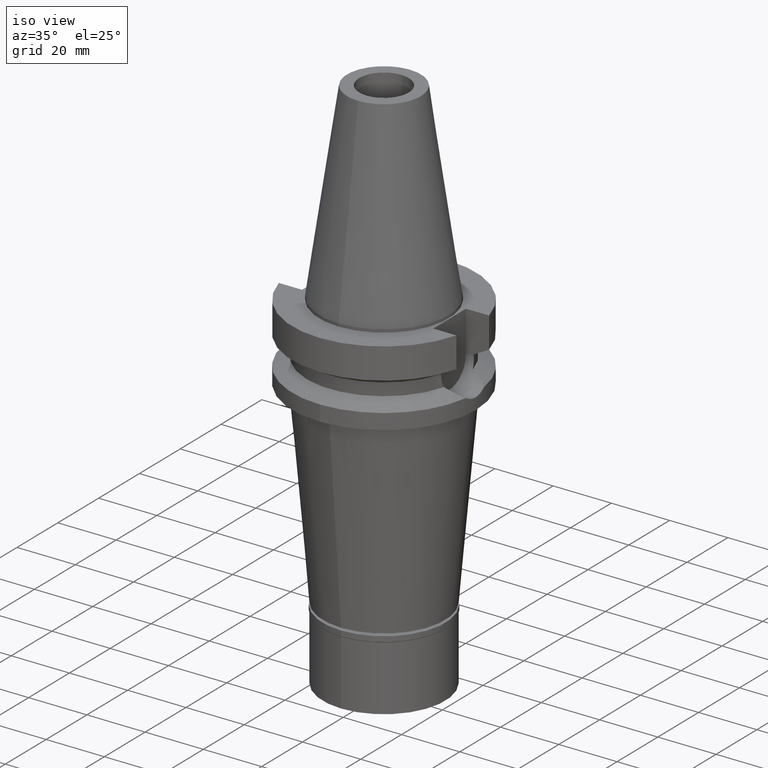
[diagram: clean part render]
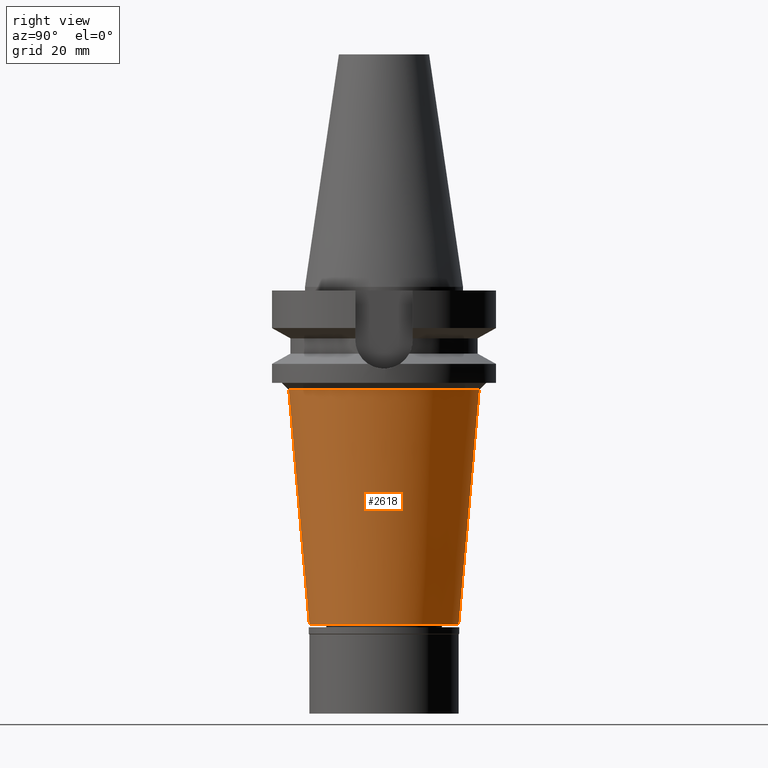
[diagram: tour spotlight — one face highlighted and labeled with its STEP entity id]
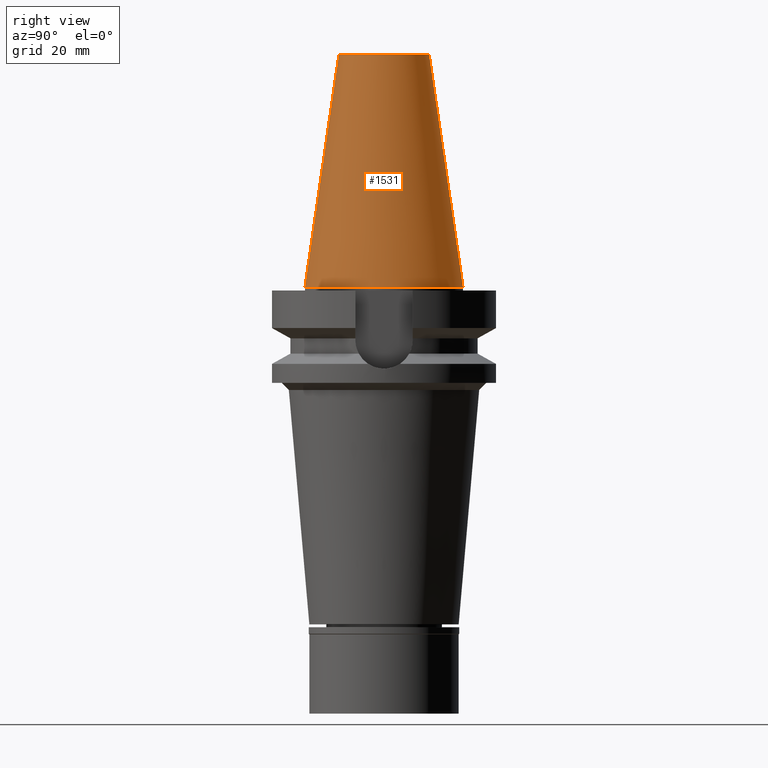
[diagram: tour spotlight — one face highlighted and labeled with its STEP entity id]
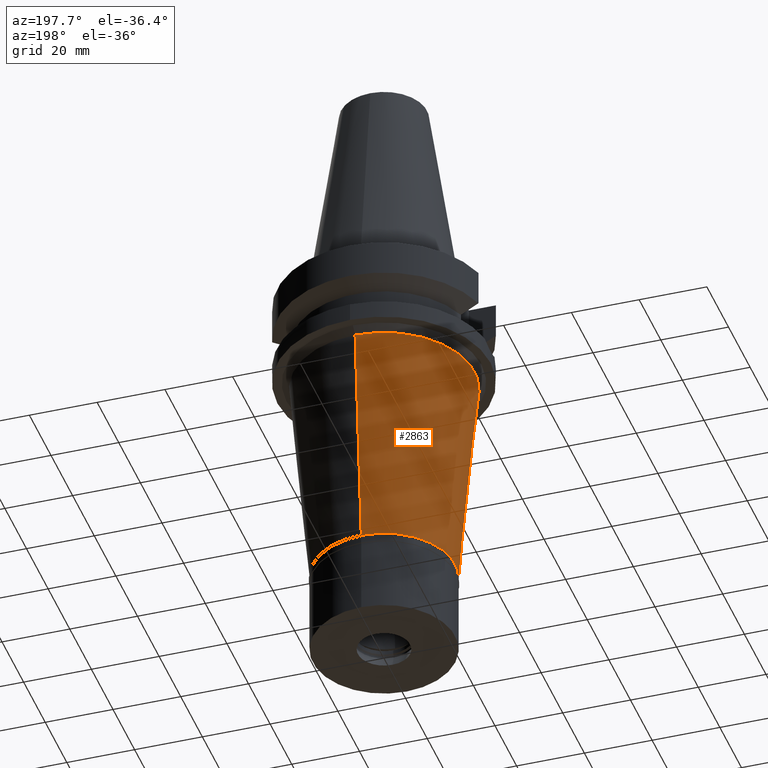
[diagram: tour spotlight — one face highlighted and labeled with its STEP entity id]
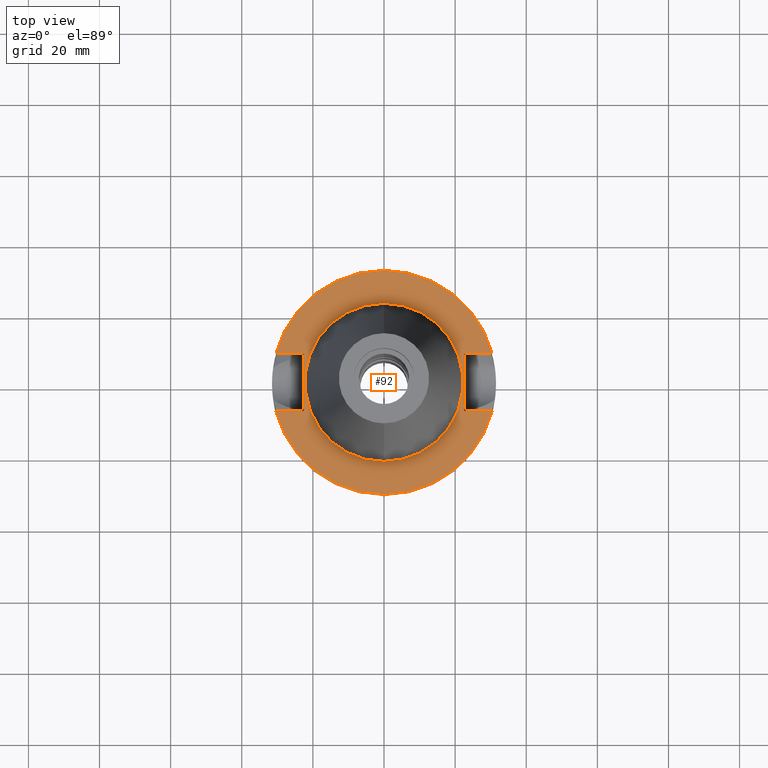
[diagram: tour spotlight — one face highlighted and labeled with its STEP entity id]
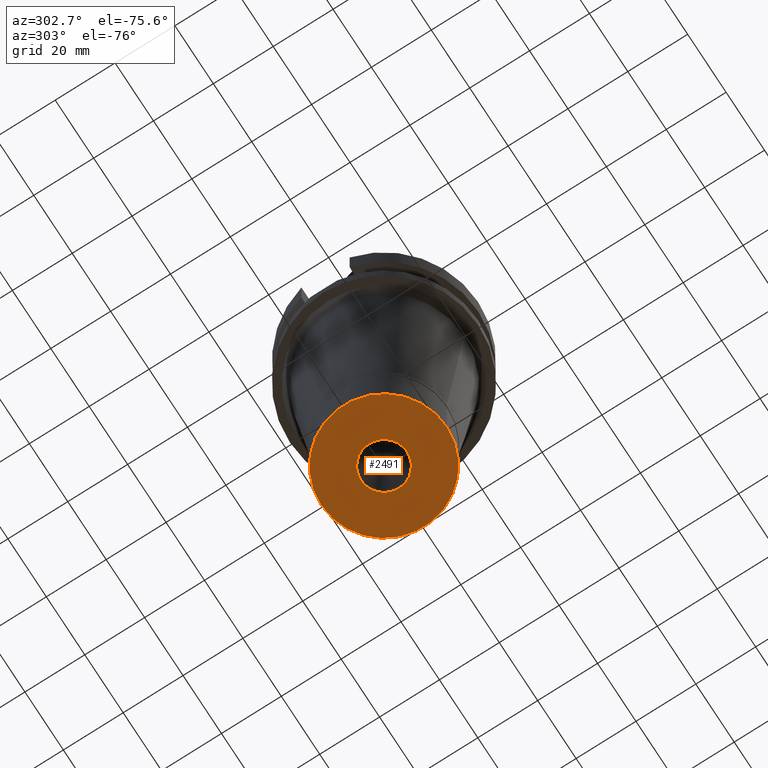
[diagram: tour spotlight — one face highlighted and labeled with its STEP entity id]
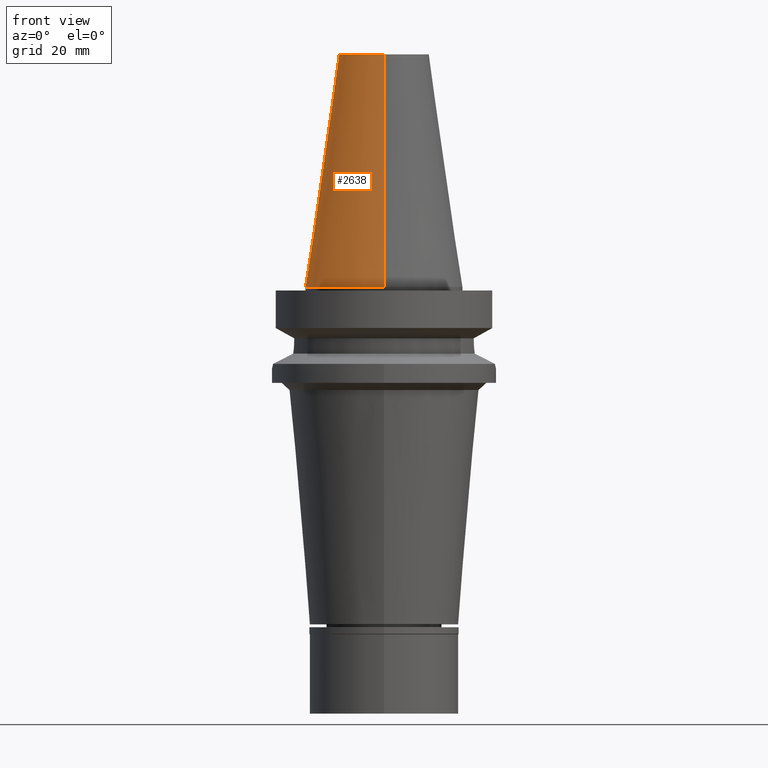
[diagram: tour spotlight — one face highlighted and labeled with its STEP entity id]
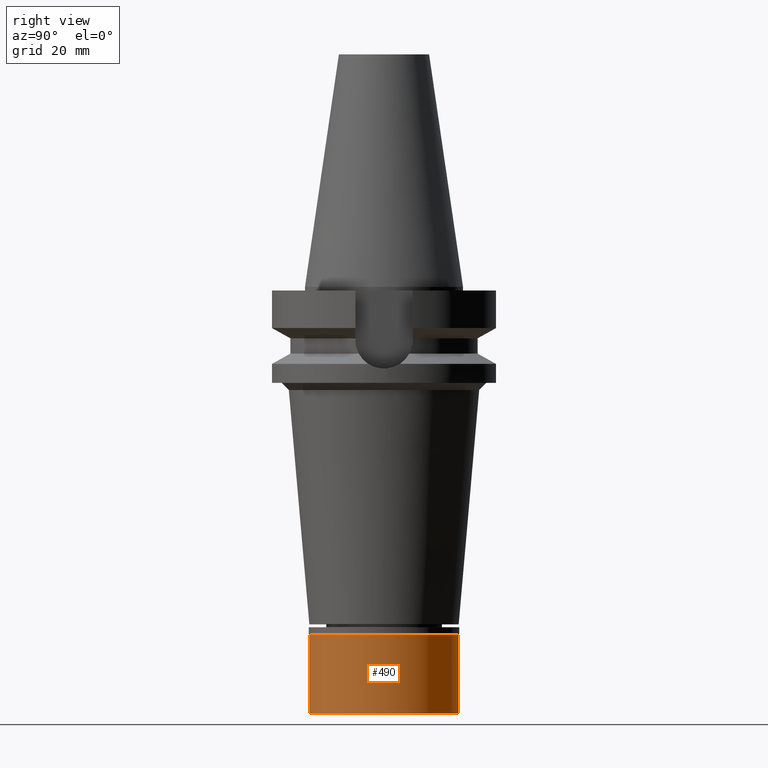
[diagram: tour spotlight — one face highlighted and labeled with its STEP entity id]
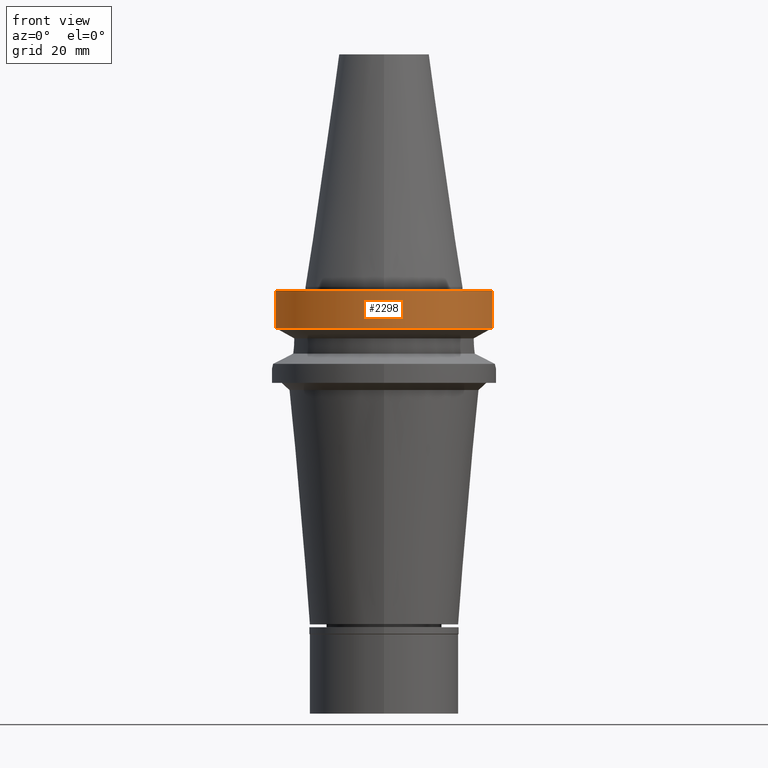
[diagram: tour spotlight — one face highlighted and labeled with its STEP entity id]
A machine part: a face-by-face anatomy tour. The part has 81 B-rep faces; the first image is the clean iso view, then the 8 largest visible faces are spotlighted one at a time (largest first), each with its STEP entity span.

Face 1 — right view, entity #2618. In plain terms, the highlighted conical surface has half-angle 5 deg.
Definition (entity closure, byte-faithful):
#28 = ORIENTED_EDGE ( 'NONE', *, *, #1691, .F. ) ;
#67 = CIRCLE ( 'NONE', #2099, 26.76550292636000350 ) ;
#131 = CARTESIAN_POINT ( 'NONE',  ( 0.0000000000000000000, -21.00000000000000000, -94.89999999999999147 ) ) ;
#168 = DIRECTION ( 'NONE',  ( 0.0000000000000000000, -1.000000000000000000, 0.0000000000000000000 ) ) ;
#322 = AXIS2_PLACEMENT_3D ( 'NONE', #2670, #936, #2180 ) ;
#342 = DIRECTION ( 'NONE',  ( 0.0000000000000000000, -1.000000000000000000, 0.0000000000000000000 ) ) ;
#345 = ORIENTED_EDGE ( 'NONE', *, *, #1412, .F. ) ;
#573 = VERTEX_POINT ( 'NONE', #1323 ) ;
#574 = DIRECTION ( 'NONE',  ( 0.0000000000000000000, -0.08715574274767391716, -0.9961946980917442129 ) ) ;
#620 = ORIENTED_EDGE ( 'NONE', *, *, #1939, .T. ) ;
#625 = VECTOR ( 'NONE', #1701, 1000.000000000000000 ) ;
#735 = FACE_OUTER_BOUND ( 'NONE', #2074, .T. ) ;
#936 = DIRECTION ( 'NONE',  ( 0.0000000000000000000, 0.0000000000000000000, 1.000000000000000000 ) ) ;
#1104 = CARTESIAN_POINT ( 'NONE',  ( 0.0000000000000000000, 0.0000000000000000000, -29.00000000000000000 ) ) ;
#1120 = DIRECTION ( 'NONE',  ( 0.0000000000000000000, 0.0000000000000000000, 1.000000000000000000 ) ) ;
#1323 = CARTESIAN_POINT ( 'NONE',  ( 0.0000000000000000000, 21.00000000000000000, -94.89999999999999147 ) ) ;
#1412 = EDGE_CURVE ( 'NONE', #2371, #1990, #67, .T. ) ;
#1480 = AXIS2_PLACEMENT_3D ( 'NONE', #1796, #2109, #342 ) ;
#1691 = EDGE_CURVE ( 'NONE', #1990, #573, #1789, .T. ) ;
#1701 = DIRECTION ( 'NONE',  ( 0.0000000000000000000, 0.08715574274767391716, -0.9961946980917442129 ) ) ;
#1789 = LINE ( 'NONE', #2236, #2761 ) ;
#1796 = CARTESIAN_POINT ( 'NONE',  ( 0.0000000000000000000, 0.0000000000000000000, -94.89999999999999147 ) ) ;
#1861 = LINE ( 'NONE', #2843, #625 ) ;
#1939 = EDGE_CURVE ( 'NONE', #2371, #2307, #1861, .T. ) ;
#1990 = VERTEX_POINT ( 'NONE', #2162 ) ;
#2074 = EDGE_LOOP ( 'NONE', ( #345, #620, #3022, #28 ) ) ;
#2099 = AXIS2_PLACEMENT_3D ( 'NONE', #1104, #1120, #168 ) ;
#2109 = DIRECTION ( 'NONE',  ( 0.0000000000000000000, 0.0000000000000000000, 1.000000000000000000 ) ) ;
#2162 = CARTESIAN_POINT ( 'NONE',  ( 0.0000000000000000000, 26.76550292636000350, -29.00000000000000000 ) ) ;
#2180 = DIRECTION ( 'NONE',  ( 0.0000000000000000000, 1.000000000000000000, 0.0000000000000000000 ) ) ;
#2236 = CARTESIAN_POINT ( 'NONE',  ( 0.0000000000000000000, 26.76550292636000350, -29.00000000000000000 ) ) ;
#2307 = VERTEX_POINT ( 'NONE', #131 ) ;
#2371 = VERTEX_POINT ( 'NONE', #2564 ) ;
#2564 = CARTESIAN_POINT ( 'NONE',  ( 0.0000000000000000000, -26.76550292636000350, -29.00000000000000000 ) ) ;
#2618 = ADVANCED_FACE ( 'NONE', ( #735 ), #2911, .T. ) ;
#2670 = CARTESIAN_POINT ( 'NONE',  ( 0.0000000000000000000, 0.0000000000000000000, -61.94999999999999574 ) ) ;
#2761 = VECTOR ( 'NONE', #574, 1000.000000000000000 ) ;
#2843 = CARTESIAN_POINT ( 'NONE',  ( 0.0000000000000000000, -26.76550292636000350, -29.00000000000000000 ) ) ;
#2864 = CIRCLE ( 'NONE', #1480, 21.00000000000000000 ) ;
#2911 = CONICAL_SURFACE ( 'NONE', #322, 23.88275146317999997, 0.08726646259969973729 ) ;
#2913 = EDGE_CURVE ( 'NONE', #2307, #573, #2864, .T. ) ;
#3022 = ORIENTED_EDGE ( 'NONE', *, *, #2913, .T. ) ;

Face 2 — right view, entity #1531. In plain terms, the highlighted conical surface has half-angle 8.297 deg.
Definition (entity closure, byte-faithful):
#13 = EDGE_CURVE ( 'NONE', #2729, #2825, #1646, .T. ) ;
#37 = DIRECTION ( 'NONE',  ( 0.0000000000000000000, 0.0000000000000000000, -1.000000000000000000 ) ) ;
#151 = CARTESIAN_POINT ( 'NONE',  ( 0.0000000000000000000, 1.625106302469000024E-14, 32.70000000000000284 ) ) ;
#175 = AXIS2_PLACEMENT_3D ( 'NONE', #151, #186, #2093 ) ;
#186 = DIRECTION ( 'NONE',  ( 0.0000000000000000000, 0.0000000000000000000, -1.000000000000000000 ) ) ;
#264 = CARTESIAN_POINT ( 'NONE',  ( 0.0000000000000000000, -12.68766899429999917, 65.40000000000000568 ) ) ;
#305 = CARTESIAN_POINT ( 'NONE',  ( 0.0000000000000000000, 1.625106302469000024E-14, 65.40000000000000568 ) ) ;
#380 = VECTOR ( 'NONE', #508, 1000.000000000000114 ) ;
#474 = DIRECTION ( 'NONE',  ( 0.0000000000000000000, 0.1443043893539925626, -0.9895333461855498891 ) ) ;
#476 = VECTOR ( 'NONE', #474, 1000.000000000000114 ) ;
#508 = DIRECTION ( 'NONE',  ( 0.0000000000000000000, -0.1443043893539925626, -0.9895333461855498891 ) ) ;
#511 = CARTESIAN_POINT ( 'NONE',  ( 0.0000000000000000000, 1.625106302469000024E-14, 2.842170943039999687E-14 ) ) ;
#529 = CONICAL_SURFACE ( 'NONE', #175, 17.45633449714999941, 0.1448099680379422438 ) ;
#593 = ORIENTED_EDGE ( 'NONE', *, *, #13, .F. ) ;
#654 = EDGE_CURVE ( 'NONE', #2033, #1111, #2455, .T. ) ;
#718 = CARTESIAN_POINT ( 'NONE',  ( 0.0000000000000000000, 12.68766899429999917, 65.40000000000000568 ) ) ;
#953 = ORIENTED_EDGE ( 'NONE', *, *, #2726, .T. ) ;
#977 = LINE ( 'NONE', #718, #476 ) ;
#1028 = EDGE_CURVE ( 'NONE', #2033, #2729, #977, .T. ) ;
#1042 = LINE ( 'NONE', #264, #380 ) ;
#1111 = VERTEX_POINT ( 'NONE', #2973 ) ;
#1240 = CARTESIAN_POINT ( 'NONE',  ( 0.0000000000000000000, 22.22500000000000142, 6.394884621841000123E-14 ) ) ;
#1302 = DIRECTION ( 'NONE',  ( 0.0000000000000000000, 1.000000000000000000, 0.0000000000000000000 ) ) ;
#1531 = ADVANCED_FACE ( 'NONE', ( #2604 ), #529, .T. ) ;
#1646 = CIRCLE ( 'NONE', #1958, 22.22500000000000142 ) ;
#1958 = AXIS2_PLACEMENT_3D ( 'NONE', #511, #37, #1974 ) ;
#1974 = DIRECTION ( 'NONE',  ( 0.0000000000000000000, 1.000000000000000000, 0.0000000000000000000 ) ) ;
#1988 = CARTESIAN_POINT ( 'NONE',  ( 0.0000000000000000000, -22.22500000000000142, 6.394884621841000123E-14 ) ) ;
#2033 = VERTEX_POINT ( 'NONE', #2643 ) ;
#2093 = DIRECTION ( 'NONE',  ( 0.0000000000000000000, -1.000000000000000000, 0.0000000000000000000 ) ) ;
#2153 = EDGE_LOOP ( 'NONE', ( #2172, #953, #593, #2424 ) ) ;
#2172 = ORIENTED_EDGE ( 'NONE', *, *, #654, .T. ) ;
#2424 = ORIENTED_EDGE ( 'NONE', *, *, #1028, .F. ) ;
#2455 = CIRCLE ( 'NONE', #2755, 12.68766899429999917 ) ;
#2604 = FACE_OUTER_BOUND ( 'NONE', #2153, .T. ) ;
#2643 = CARTESIAN_POINT ( 'NONE',  ( 0.0000000000000000000, 12.68766899429999917, 65.40000000000000568 ) ) ;
#2726 = EDGE_CURVE ( 'NONE', #1111, #2825, #1042, .T. ) ;
#2729 = VERTEX_POINT ( 'NONE', #1240 ) ;
#2755 = AXIS2_PLACEMENT_3D ( 'NONE', #305, #2977, #1302 ) ;
#2825 = VERTEX_POINT ( 'NONE', #1988 ) ;
#2973 = CARTESIAN_POINT ( 'NONE',  ( 0.0000000000000000000, -12.68766899429999917, 65.40000000000000568 ) ) ;
#2977 = DIRECTION ( 'NONE',  ( 0.0000000000000000000, 0.0000000000000000000, -1.000000000000000000 ) ) ;

Face 3 — auxiliary view, entity #2863. In plain terms, the highlighted conical surface has half-angle 5 deg.
Definition (entity closure, byte-faithful):
#131 = CARTESIAN_POINT ( 'NONE',  ( 0.0000000000000000000, -21.00000000000000000, -94.89999999999999147 ) ) ;
#184 = DIRECTION ( 'NONE',  ( 0.0000000000000000000, 0.0000000000000000000, -1.000000000000000000 ) ) ;
#211 = ORIENTED_EDGE ( 'NONE', *, *, #241, .T. ) ;
#228 = AXIS2_PLACEMENT_3D ( 'NONE', #1150, #1396, #1883 ) ;
#241 = EDGE_CURVE ( 'NONE', #2371, #1990, #2518, .T. ) ;
#573 = VERTEX_POINT ( 'NONE', #1323 ) ;
#574 = DIRECTION ( 'NONE',  ( 0.0000000000000000000, -0.08715574274767391716, -0.9961946980917442129 ) ) ;
#625 = VECTOR ( 'NONE', #1701, 1000.000000000000000 ) ;
#815 = EDGE_CURVE ( 'NONE', #573, #2307, #2610, .T. ) ;
#1150 = CARTESIAN_POINT ( 'NONE',  ( 0.0000000000000000000, 0.0000000000000000000, -61.94999999999999574 ) ) ;
#1278 = ORIENTED_EDGE ( 'NONE', *, *, #1939, .F. ) ;
#1318 = CARTESIAN_POINT ( 'NONE',  ( 0.0000000000000000000, 0.0000000000000000000, -29.00000000000000000 ) ) ;
#1323 = CARTESIAN_POINT ( 'NONE',  ( 0.0000000000000000000, 21.00000000000000000, -94.89999999999999147 ) ) ;
#1396 = DIRECTION ( 'NONE',  ( 0.0000000000000000000, 0.0000000000000000000, 1.000000000000000000 ) ) ;
#1539 = FACE_OUTER_BOUND ( 'NONE', #2715, .T. ) ;
#1660 = CARTESIAN_POINT ( 'NONE',  ( 0.0000000000000000000, 0.0000000000000000000, -94.89999999999999147 ) ) ;
#1691 = EDGE_CURVE ( 'NONE', #1990, #573, #1789, .T. ) ;
#1701 = DIRECTION ( 'NONE',  ( 0.0000000000000000000, 0.08715574274767391716, -0.9961946980917442129 ) ) ;
#1752 = AXIS2_PLACEMENT_3D ( 'NONE', #1318, #184, #2313 ) ;
#1789 = LINE ( 'NONE', #2236, #2761 ) ;
#1861 = LINE ( 'NONE', #2843, #625 ) ;
#1883 = DIRECTION ( 'NONE',  ( 0.0000000000000000000, 1.000000000000000000, 0.0000000000000000000 ) ) ;
#1902 = DIRECTION ( 'NONE',  ( 0.0000000000000000000, 1.000000000000000000, 0.0000000000000000000 ) ) ;
#1939 = EDGE_CURVE ( 'NONE', #2371, #2307, #1861, .T. ) ;
#1990 = VERTEX_POINT ( 'NONE', #2162 ) ;
#2080 = DIRECTION ( 'NONE',  ( 0.0000000000000000000, 0.0000000000000000000, 1.000000000000000000 ) ) ;
#2162 = CARTESIAN_POINT ( 'NONE',  ( 0.0000000000000000000, 26.76550292636000350, -29.00000000000000000 ) ) ;
#2204 = ORIENTED_EDGE ( 'NONE', *, *, #1691, .T. ) ;
#2236 = CARTESIAN_POINT ( 'NONE',  ( 0.0000000000000000000, 26.76550292636000350, -29.00000000000000000 ) ) ;
#2307 = VERTEX_POINT ( 'NONE', #131 ) ;
#2313 = DIRECTION ( 'NONE',  ( 0.0000000000000000000, -1.000000000000000000, 0.0000000000000000000 ) ) ;
#2371 = VERTEX_POINT ( 'NONE', #2564 ) ;
#2518 = CIRCLE ( 'NONE', #1752, 26.76550292636000350 ) ;
#2564 = CARTESIAN_POINT ( 'NONE',  ( 0.0000000000000000000, -26.76550292636000350, -29.00000000000000000 ) ) ;
#2569 = ORIENTED_EDGE ( 'NONE', *, *, #815, .T. ) ;
#2610 = CIRCLE ( 'NONE', #2656, 21.00000000000000000 ) ;
#2656 = AXIS2_PLACEMENT_3D ( 'NONE', #1660, #2080, #1902 ) ;
#2715 = EDGE_LOOP ( 'NONE', ( #2569, #1278, #211, #2204 ) ) ;
#2761 = VECTOR ( 'NONE', #574, 1000.000000000000000 ) ;
#2809 = CONICAL_SURFACE ( 'NONE', #228, 23.88275146317999997, 0.08726646259969973729 ) ;
#2843 = CARTESIAN_POINT ( 'NONE',  ( 0.0000000000000000000, -26.76550292636000350, -29.00000000000000000 ) ) ;
#2863 = ADVANCED_FACE ( 'NONE', ( #1539 ), #2809, .T. ) ;

Face 4 — top view, entity #92. In plain terms, the highlighted planar face has unit normal (0, 0, -1).
Definition (entity closure, byte-faithful):
#92 = ADVANCED_FACE ( 'NONE', ( #1077, #2321 ), #1605, .F. ) ;
#113 = EDGE_CURVE ( 'NONE', #612, #2997, #2349, .T. ) ;
#142 = ORIENTED_EDGE ( 'NONE', *, *, #912, .F. ) ;
#147 = DIRECTION ( 'NONE',  ( 0.0000000000000000000, 1.000000000000000000, 0.0000000000000000000 ) ) ;
#167 = DIRECTION ( 'NONE',  ( -1.000000000000000000, 3.550916904668000126E-14, 0.0000000000000000000 ) ) ;
#255 = DIRECTION ( 'NONE',  ( 0.0000000000000000000, -1.000000000000000000, 0.0000000000000000000 ) ) ;
#261 = DIRECTION ( 'NONE',  ( 1.000000000000000000, 3.573249715389999860E-14, 0.0000000000000000000 ) ) ;
#298 = CARTESIAN_POINT ( 'NONE',  ( 0.0000000000000000000, -22.22500000000000142, -1.000000000000000000 ) ) ;
#310 = VECTOR ( 'NONE', #261, 1000.000000000000000 ) ;
#330 = DIRECTION ( 'NONE',  ( 0.0000000000000000000, -1.000000000000000000, 0.0000000000000000000 ) ) ;
#377 = EDGE_CURVE ( 'NONE', #2401, #2521, #2689, .T. ) ;
#484 = AXIS2_PLACEMENT_3D ( 'NONE', #3100, #2849, #917 ) ;
#527 = VECTOR ( 'NONE', #2780, 1000.000000000000000 ) ;
#548 = DIRECTION ( 'NONE',  ( 0.0000000000000000000, 1.000000000000000000, 0.0000000000000000000 ) ) ;
#612 = VERTEX_POINT ( 'NONE', #2005 ) ;
#619 = VERTEX_POINT ( 'NONE', #2507 ) ;
#656 = CARTESIAN_POINT ( 'NONE',  ( 0.0000000000000000000, 1.212400331155999925E-14, -1.000000000000000000 ) ) ;
#662 = DIRECTION ( 'NONE',  ( 0.0000000000000000000, -1.000000000000000000, 0.0000000000000000000 ) ) ;
#813 = AXIS2_PLACEMENT_3D ( 'NONE', #2311, #3041, #662 ) ;
#867 = CARTESIAN_POINT ( 'NONE',  ( -22.50000000000000000, 8.050000000000000711, -1.000000000000000000 ) ) ;
#893 = CARTESIAN_POINT ( 'NONE',  ( 22.50000000000000000, 8.050000000000000711, -1.000000000000000000 ) ) ;
#905 = LINE ( 'NONE', #947, #310 ) ;
#912 = EDGE_CURVE ( 'NONE', #1097, #1406, #905, .T. ) ;
#917 = DIRECTION ( 'NONE',  ( 0.0000000000000000000, -1.000000000000000000, 0.0000000000000000000 ) ) ;
#947 = CARTESIAN_POINT ( 'NONE',  ( 22.50000000000000000, -8.050000000000000711, -1.000000000000000000 ) ) ;
#957 = ORIENTED_EDGE ( 'NONE', *, *, #1218, .F. ) ;
#1034 = ORIENTED_EDGE ( 'NONE', *, *, #2369, .F. ) ;
#1055 = CIRCLE ( 'NONE', #813, 31.50000000000000000 ) ;
#1060 = LINE ( 'NONE', #893, #527 ) ;
#1074 = VECTOR ( 'NONE', #167, 1000.000000000000000 ) ;
#1077 = FACE_OUTER_BOUND ( 'NONE', #2527, .T. ) ;
#1092 = ORIENTED_EDGE ( 'NONE', *, *, #113, .T. ) ;
#1097 = VERTEX_POINT ( 'NONE', #2059 ) ;
#1144 = ORIENTED_EDGE ( 'NONE', *, *, #2353, .T. ) ;
#1170 = VECTOR ( 'NONE', #2839, 1000.000000000000000 ) ;
#1218 = EDGE_CURVE ( 'NONE', #1878, #1699, #1367, .T. ) ;
#1237 = CARTESIAN_POINT ( 'NONE',  ( 0.0000000000000000000, 2.134498138573999781E-14, -1.000000000000000000 ) ) ;
#1366 = CARTESIAN_POINT ( 'NONE',  ( 0.0000000000000000000, 2.134498138573999781E-14, -1.000000000000000000 ) ) ;
#1367 = CIRCLE ( 'NONE', #2612, 22.22500000000000142 ) ;
#1381 = CIRCLE ( 'NONE', #484, 22.22500000000000142 ) ;
#1406 = VERTEX_POINT ( 'NONE', #2344 ) ;
#1448 = CARTESIAN_POINT ( 'NONE',  ( -30.45402272279000044, 8.050000000000000711, -1.000000000000000000 ) ) ;
#1570 = CIRCLE ( 'NONE', #2142, 31.50000000000000000 ) ;
#1605 = PLANE ( 'NONE',  #2364 ) ;
#1606 = LINE ( 'NONE', #2530, #1170 ) ;
#1665 = CARTESIAN_POINT ( 'NONE',  ( 22.50000000000000000, 8.050000000000000711, -1.000000000000000000 ) ) ;
#1699 = VERTEX_POINT ( 'NONE', #298 ) ;
#1702 = CARTESIAN_POINT ( 'NONE',  ( -22.50000000000000000, 8.050000000000000711, -1.000000000000000000 ) ) ;
#1705 = ORIENTED_EDGE ( 'NONE', *, *, #1956, .F. ) ;
#1716 = LINE ( 'NONE', #1665, #1889 ) ;
#1723 = CARTESIAN_POINT ( 'NONE',  ( -30.45402272279000044, -8.050000000000000711, -1.000000000000000000 ) ) ;
#1778 = EDGE_CURVE ( 'NONE', #1406, #2997, #1055, .T. ) ;
#1871 = EDGE_CURVE ( 'NONE', #2521, #2413, #1570, .T. ) ;
#1878 = VERTEX_POINT ( 'NONE', #2118 ) ;
#1889 = VECTOR ( 'NONE', #255, 1000.000000000000000 ) ;
#1941 = ORIENTED_EDGE ( 'NONE', *, *, #377, .F. ) ;
#1956 = EDGE_CURVE ( 'NONE', #619, #1097, #1716, .T. ) ;
#2005 = CARTESIAN_POINT ( 'NONE',  ( -22.50000000000000000, -8.050000000000000711, -1.000000000000000000 ) ) ;
#2015 = DIRECTION ( 'NONE',  ( 0.0000000000000000000, 0.0000000000000000000, 1.000000000000000000 ) ) ;
#2059 = CARTESIAN_POINT ( 'NONE',  ( 22.50000000000000000, -8.050000000000000711, -1.000000000000000000 ) ) ;
#2066 = DIRECTION ( 'NONE',  ( 0.0000000000000000000, 0.0000000000000000000, -1.000000000000000000 ) ) ;
#2081 = ORIENTED_EDGE ( 'NONE', *, *, #2867, .F. ) ;
#2118 = CARTESIAN_POINT ( 'NONE',  ( 0.0000000000000000000, 22.22500000000000142, -1.000000000000000000 ) ) ;
#2142 = AXIS2_PLACEMENT_3D ( 'NONE', #1366, #3023, #147 ) ;
#2259 = VECTOR ( 'NONE', #2452, 1000.000000000000000 ) ;
#2285 = CARTESIAN_POINT ( 'NONE',  ( 30.45402272279000044, 8.050000000000000711, -1.000000000000000000 ) ) ;
#2311 = CARTESIAN_POINT ( 'NONE',  ( 0.0000000000000000000, 2.134498138573999781E-14, -1.000000000000000000 ) ) ;
#2321 = FACE_BOUND ( 'NONE', #2482, .T. ) ;
#2344 = CARTESIAN_POINT ( 'NONE',  ( 30.45402272279000044, -8.050000000000000711, -1.000000000000000000 ) ) ;
#2349 = LINE ( 'NONE', #2554, #1074 ) ;
#2353 = EDGE_CURVE ( 'NONE', #619, #2413, #1060, .T. ) ;
#2364 = AXIS2_PLACEMENT_3D ( 'NONE', #656, #2066, #330 ) ;
#2369 = EDGE_CURVE ( 'NONE', #612, #2401, #1606, .T. ) ;
#2401 = VERTEX_POINT ( 'NONE', #867 ) ;
#2413 = VERTEX_POINT ( 'NONE', #2285 ) ;
#2452 = DIRECTION ( 'NONE',  ( -1.000000000000000000, -3.550916904668000126E-14, 0.0000000000000000000 ) ) ;
#2482 = EDGE_LOOP ( 'NONE', ( #957, #2081 ) ) ;
#2496 = ORIENTED_EDGE ( 'NONE', *, *, #1778, .F. ) ;
#2507 = CARTESIAN_POINT ( 'NONE',  ( 22.50000000000000000, 8.050000000000000711, -1.000000000000000000 ) ) ;
#2521 = VERTEX_POINT ( 'NONE', #1448 ) ;
#2527 = EDGE_LOOP ( 'NONE', ( #1092, #2496, #142, #1705, #1144, #2967, #1941, #1034 ) ) ;
#2530 = CARTESIAN_POINT ( 'NONE',  ( -22.50000000000000000, -8.050000000000000711, -1.000000000000000000 ) ) ;
#2554 = CARTESIAN_POINT ( 'NONE',  ( -22.50000000000000000, -8.050000000000000711, -1.000000000000000000 ) ) ;
#2612 = AXIS2_PLACEMENT_3D ( 'NONE', #1237, #2015, #548 ) ;
#2689 = LINE ( 'NONE', #1702, #2259 ) ;
#2780 = DIRECTION ( 'NONE',  ( 1.000000000000000000, -3.506251283225999947E-14, 0.0000000000000000000 ) ) ;
#2839 = DIRECTION ( 'NONE',  ( 0.0000000000000000000, 1.000000000000000000, 0.0000000000000000000 ) ) ;
#2849 = DIRECTION ( 'NONE',  ( 0.0000000000000000000, 0.0000000000000000000, 1.000000000000000000 ) ) ;
#2867 = EDGE_CURVE ( 'NONE', #1699, #1878, #1381, .T. ) ;
#2967 = ORIENTED_EDGE ( 'NONE', *, *, #1871, .F. ) ;
#2997 = VERTEX_POINT ( 'NONE', #1723 ) ;
#3023 = DIRECTION ( 'NONE',  ( 0.0000000000000000000, 0.0000000000000000000, -1.000000000000000000 ) ) ;
#3041 = DIRECTION ( 'NONE',  ( 0.0000000000000000000, 0.0000000000000000000, -1.000000000000000000 ) ) ;
#3100 = CARTESIAN_POINT ( 'NONE',  ( 0.0000000000000000000, 2.134498138573999781E-14, -1.000000000000000000 ) ) ;

Face 5 — auxiliary view, entity #2491. In plain terms, the highlighted planar face has unit normal (0, 0, -1).
Definition (entity closure, byte-faithful):
#98 = CARTESIAN_POINT ( 'NONE',  ( 0.0000000000000000000, 0.0000000000000000000, -24.29999999999999716 ) ) ;
#144 = DIRECTION ( 'NONE',  ( 0.0000000000000000000, 1.000000000000000000, 0.0000000000000000000 ) ) ;
#162 = ORIENTED_EDGE ( 'NONE', *, *, #2378, .F. ) ;
#222 = AXIS2_PLACEMENT_3D ( 'NONE', #384, #2084, #1593 ) ;
#312 = AXIS2_PLACEMENT_3D ( 'NONE', #98, #1263, #1992 ) ;
#365 = CARTESIAN_POINT ( 'NONE',  ( 0.0000000000000000000, 0.0000000000000000000, -24.29999999999999716 ) ) ;
#384 = CARTESIAN_POINT ( 'NONE',  ( 0.0000000000000000000, 0.0000000000000000000, -24.29999999999999716 ) ) ;
#468 = CARTESIAN_POINT ( 'NONE',  ( 0.0000000000000000000, -21.00000000000000000, -24.29999999999999716 ) ) ;
#707 = CARTESIAN_POINT ( 'NONE',  ( 0.0000000000000000000, 0.0000000000000000000, -24.29999999999999716 ) ) ;
#836 = DIRECTION ( 'NONE',  ( 0.0000000000000000000, 0.0000000000000000000, 1.000000000000000000 ) ) ;
#850 = DIRECTION ( 'NONE',  ( 0.0000000000000000000, -1.000000000000000000, 0.0000000000000000000 ) ) ;
#892 = VERTEX_POINT ( 'NONE', #1831 ) ;
#922 = FACE_OUTER_BOUND ( 'NONE', #2149, .T. ) ;
#1093 = DIRECTION ( 'NONE',  ( 0.0000000000000000000, 0.0000000000000000000, -1.000000000000000000 ) ) ;
#1140 = PLANE ( 'NONE',  #3070 ) ;
#1263 = DIRECTION ( 'NONE',  ( 0.0000000000000000000, 0.0000000000000000000, -1.000000000000000000 ) ) ;
#1470 = CIRCLE ( 'NONE', #312, 7.700000000000000178 ) ;
#1546 = VERTEX_POINT ( 'NONE', #468 ) ;
#1572 = ORIENTED_EDGE ( 'NONE', *, *, #2323, .F. ) ;
#1593 = DIRECTION ( 'NONE',  ( 0.0000000000000000000, -1.000000000000000000, 0.0000000000000000000 ) ) ;
#1696 = FACE_BOUND ( 'NONE', #1821, .T. ) ;
#1821 = EDGE_LOOP ( 'NONE', ( #2471, #2602 ) ) ;
#1831 = CARTESIAN_POINT ( 'NONE',  ( 0.0000000000000000000, 7.700000000000000178, -24.29999999999999716 ) ) ;
#1857 = CARTESIAN_POINT ( 'NONE',  ( 0.0000000000000000000, 0.0000000000000000000, -24.29999999999999716 ) ) ;
#1906 = DIRECTION ( 'NONE',  ( 0.0000000000000000000, 0.0000000000000000000, -1.000000000000000000 ) ) ;
#1923 = CARTESIAN_POINT ( 'NONE',  ( 0.0000000000000000000, 21.00000000000000000, -24.29999999999999716 ) ) ;
#1992 = DIRECTION ( 'NONE',  ( 0.0000000000000000000, 1.000000000000000000, 0.0000000000000000000 ) ) ;
#2002 = AXIS2_PLACEMENT_3D ( 'NONE', #365, #836, #144 ) ;
#2023 = VERTEX_POINT ( 'NONE', #2131 ) ;
#2084 = DIRECTION ( 'NONE',  ( 0.0000000000000000000, 0.0000000000000000000, 1.000000000000000000 ) ) ;
#2131 = CARTESIAN_POINT ( 'NONE',  ( 0.0000000000000000000, -7.700000000000000178, -24.29999999999999716 ) ) ;
#2141 = EDGE_CURVE ( 'NONE', #892, #2023, #1470, .T. ) ;
#2149 = EDGE_LOOP ( 'NONE', ( #1572, #162 ) ) ;
#2150 = CIRCLE ( 'NONE', #222, 21.00000000000000000 ) ;
#2303 = EDGE_CURVE ( 'NONE', #2023, #892, #2614, .T. ) ;
#2323 = EDGE_CURVE ( 'NONE', #2621, #1546, #2560, .T. ) ;
#2378 = EDGE_CURVE ( 'NONE', #1546, #2621, #2150, .T. ) ;
#2471 = ORIENTED_EDGE ( 'NONE', *, *, #2141, .F. ) ;
#2491 = ADVANCED_FACE ( 'NONE', ( #922, #1696 ), #1140, .T. ) ;
#2560 = CIRCLE ( 'NONE', #2002, 21.00000000000000000 ) ;
#2602 = ORIENTED_EDGE ( 'NONE', *, *, #2303, .F. ) ;
#2614 = CIRCLE ( 'NONE', #3117, 7.700000000000000178 ) ;
#2621 = VERTEX_POINT ( 'NONE', #1923 ) ;
#2629 = DIRECTION ( 'NONE',  ( 0.0000000000000000000, -1.000000000000000000, 0.0000000000000000000 ) ) ;
#3070 = AXIS2_PLACEMENT_3D ( 'NONE', #707, #1906, #2629 ) ;
#3117 = AXIS2_PLACEMENT_3D ( 'NONE', #1857, #1093, #850 ) ;

Face 6 — front view, entity #2638. In plain terms, the highlighted conical surface has half-angle 8.297 deg.
Definition (entity closure, byte-faithful):
#149 = ORIENTED_EDGE ( 'NONE', *, *, #2726, .F. ) ;
#159 = DIRECTION ( 'NONE',  ( 0.0000000000000000000, 0.0000000000000000000, -1.000000000000000000 ) ) ;
#169 = CIRCLE ( 'NONE', #1945, 12.68766899429999917 ) ;
#264 = CARTESIAN_POINT ( 'NONE',  ( 0.0000000000000000000, -12.68766899429999917, 65.40000000000000568 ) ) ;
#369 = DIRECTION ( 'NONE',  ( 0.0000000000000000000, -1.000000000000000000, 0.0000000000000000000 ) ) ;
#380 = VECTOR ( 'NONE', #508, 1000.000000000000114 ) ;
#415 = DIRECTION ( 'NONE',  ( 0.0000000000000000000, -1.000000000000000000, 0.0000000000000000000 ) ) ;
#432 = CARTESIAN_POINT ( 'NONE',  ( 0.0000000000000000000, 1.625106302469000024E-14, 32.70000000000000284 ) ) ;
#474 = DIRECTION ( 'NONE',  ( 0.0000000000000000000, 0.1443043893539925626, -0.9895333461855498891 ) ) ;
#476 = VECTOR ( 'NONE', #474, 1000.000000000000114 ) ;
#508 = DIRECTION ( 'NONE',  ( 0.0000000000000000000, -0.1443043893539925626, -0.9895333461855498891 ) ) ;
#718 = CARTESIAN_POINT ( 'NONE',  ( 0.0000000000000000000, 12.68766899429999917, 65.40000000000000568 ) ) ;
#977 = LINE ( 'NONE', #718, #476 ) ;
#1028 = EDGE_CURVE ( 'NONE', #2033, #2729, #977, .T. ) ;
#1042 = LINE ( 'NONE', #264, #380 ) ;
#1080 = CARTESIAN_POINT ( 'NONE',  ( 0.0000000000000000000, 1.625106302469000024E-14, 2.842170943039999687E-14 ) ) ;
#1084 = CARTESIAN_POINT ( 'NONE',  ( 0.0000000000000000000, 1.625106302469000024E-14, 65.40000000000000568 ) ) ;
#1111 = VERTEX_POINT ( 'NONE', #2973 ) ;
#1240 = CARTESIAN_POINT ( 'NONE',  ( 0.0000000000000000000, 22.22500000000000142, 6.394884621841000123E-14 ) ) ;
#1383 = DIRECTION ( 'NONE',  ( 0.0000000000000000000, 0.0000000000000000000, -1.000000000000000000 ) ) ;
#1532 = AXIS2_PLACEMENT_3D ( 'NONE', #432, #1383, #2368 ) ;
#1540 = ORIENTED_EDGE ( 'NONE', *, *, #1028, .T. ) ;
#1596 = DIRECTION ( 'NONE',  ( 0.0000000000000000000, 0.0000000000000000000, -1.000000000000000000 ) ) ;
#1735 = CIRCLE ( 'NONE', #2147, 22.22500000000000142 ) ;
#1815 = EDGE_CURVE ( 'NONE', #1111, #2033, #169, .T. ) ;
#1945 = AXIS2_PLACEMENT_3D ( 'NONE', #1084, #1596, #369 ) ;
#1988 = CARTESIAN_POINT ( 'NONE',  ( 0.0000000000000000000, -22.22500000000000142, 6.394884621841000123E-14 ) ) ;
#2033 = VERTEX_POINT ( 'NONE', #2643 ) ;
#2147 = AXIS2_PLACEMENT_3D ( 'NONE', #1080, #159, #415 ) ;
#2159 = ORIENTED_EDGE ( 'NONE', *, *, #1815, .T. ) ;
#2309 = EDGE_LOOP ( 'NONE', ( #2998, #149, #2159, #1540 ) ) ;
#2318 = EDGE_CURVE ( 'NONE', #2825, #2729, #1735, .T. ) ;
#2368 = DIRECTION ( 'NONE',  ( 0.0000000000000000000, -1.000000000000000000, 0.0000000000000000000 ) ) ;
#2613 = FACE_OUTER_BOUND ( 'NONE', #2309, .T. ) ;
#2638 = ADVANCED_FACE ( 'NONE', ( #2613 ), #2712, .T. ) ;
#2643 = CARTESIAN_POINT ( 'NONE',  ( 0.0000000000000000000, 12.68766899429999917, 65.40000000000000568 ) ) ;
#2712 = CONICAL_SURFACE ( 'NONE', #1532, 17.45633449714999941, 0.1448099680379422438 ) ;
#2726 = EDGE_CURVE ( 'NONE', #1111, #2825, #1042, .T. ) ;
#2729 = VERTEX_POINT ( 'NONE', #1240 ) ;
#2825 = VERTEX_POINT ( 'NONE', #1988 ) ;
#2973 = CARTESIAN_POINT ( 'NONE',  ( 0.0000000000000000000, -12.68766899429999917, 65.40000000000000568 ) ) ;
#2998 = ORIENTED_EDGE ( 'NONE', *, *, #2318, .F. ) ;

Face 7 — right view, entity #490. In plain terms, the highlighted cylindrical surface (partial cylindrical patch) has radius 21 mm, axis along (0, 0, -1).
Definition (entity closure, byte-faithful):
#11 = ORIENTED_EDGE ( 'NONE', *, *, #2181, .F. ) ;
#15 = AXIS2_PLACEMENT_3D ( 'NONE', #1823, #2280, #2744 ) ;
#41 = LINE ( 'NONE', #1964, #477 ) ;
#59 = CIRCLE ( 'NONE', #15, 21.00000000000000000 ) ;
#222 = AXIS2_PLACEMENT_3D ( 'NONE', #384, #2084, #1593 ) ;
#226 = ORIENTED_EDGE ( 'NONE', *, *, #1587, .T. ) ;
#259 = CARTESIAN_POINT ( 'NONE',  ( 0.0000000000000000000, -21.00000000000000000, -2.000000000000000000 ) ) ;
#346 = DIRECTION ( 'NONE',  ( 0.0000000000000000000, 0.0000000000000000000, -1.000000000000000000 ) ) ;
#351 = ORIENTED_EDGE ( 'NONE', *, *, #2378, .T. ) ;
#384 = CARTESIAN_POINT ( 'NONE',  ( 0.0000000000000000000, 0.0000000000000000000, -24.29999999999999716 ) ) ;
#468 = CARTESIAN_POINT ( 'NONE',  ( 0.0000000000000000000, -21.00000000000000000, -24.29999999999999716 ) ) ;
#477 = VECTOR ( 'NONE', #1719, 1000.000000000000000 ) ;
#490 = ADVANCED_FACE ( 'NONE', ( #2740 ), #2980, .T. ) ;
#564 = EDGE_CURVE ( 'NONE', #837, #1563, #59, .T. ) ;
#587 = AXIS2_PLACEMENT_3D ( 'NONE', #1770, #346, #1290 ) ;
#731 = VECTOR ( 'NONE', #2270, 1000.000000000000000 ) ;
#837 = VERTEX_POINT ( 'NONE', #1624 ) ;
#1290 = DIRECTION ( 'NONE',  ( 0.0000000000000000000, -1.000000000000000000, 0.0000000000000000000 ) ) ;
#1495 = LINE ( 'NONE', #1785, #731 ) ;
#1546 = VERTEX_POINT ( 'NONE', #468 ) ;
#1563 = VERTEX_POINT ( 'NONE', #259 ) ;
#1587 = EDGE_CURVE ( 'NONE', #1563, #1546, #41, .T. ) ;
#1593 = DIRECTION ( 'NONE',  ( 0.0000000000000000000, -1.000000000000000000, 0.0000000000000000000 ) ) ;
#1624 = CARTESIAN_POINT ( 'NONE',  ( 0.0000000000000000000, 21.00000000000000000, -2.000000000000000000 ) ) ;
#1719 = DIRECTION ( 'NONE',  ( 0.0000000000000000000, 0.0000000000000000000, -1.000000000000000000 ) ) ;
#1770 = CARTESIAN_POINT ( 'NONE',  ( 0.0000000000000000000, 0.0000000000000000000, 0.0000000000000000000 ) ) ;
#1785 = CARTESIAN_POINT ( 'NONE',  ( 0.0000000000000000000, 21.00000000000000000, -2.000000000000000000 ) ) ;
#1823 = CARTESIAN_POINT ( 'NONE',  ( 0.0000000000000000000, 0.0000000000000000000, -2.000000000000000000 ) ) ;
#1923 = CARTESIAN_POINT ( 'NONE',  ( 0.0000000000000000000, 21.00000000000000000, -24.29999999999999716 ) ) ;
#1964 = CARTESIAN_POINT ( 'NONE',  ( 0.0000000000000000000, -21.00000000000000000, -2.000000000000000000 ) ) ;
#2084 = DIRECTION ( 'NONE',  ( 0.0000000000000000000, 0.0000000000000000000, 1.000000000000000000 ) ) ;
#2150 = CIRCLE ( 'NONE', #222, 21.00000000000000000 ) ;
#2181 = EDGE_CURVE ( 'NONE', #837, #2621, #1495, .T. ) ;
#2270 = DIRECTION ( 'NONE',  ( 0.0000000000000000000, 0.0000000000000000000, -1.000000000000000000 ) ) ;
#2280 = DIRECTION ( 'NONE',  ( 0.0000000000000000000, 0.0000000000000000000, -1.000000000000000000 ) ) ;
#2370 = ORIENTED_EDGE ( 'NONE', *, *, #564, .T. ) ;
#2378 = EDGE_CURVE ( 'NONE', #1546, #2621, #2150, .T. ) ;
#2621 = VERTEX_POINT ( 'NONE', #1923 ) ;
#2740 = FACE_OUTER_BOUND ( 'NONE', #2886, .T. ) ;
#2744 = DIRECTION ( 'NONE',  ( 0.0000000000000000000, 1.000000000000000000, 0.0000000000000000000 ) ) ;
#2886 = EDGE_LOOP ( 'NONE', ( #2370, #226, #351, #11 ) ) ;
#2980 = CYLINDRICAL_SURFACE ( 'NONE', #587, 21.00000000000000000 ) ;

Face 8 — front view, entity #2298. In plain terms, the highlighted cylindrical surface (partial cylindrical patch) has radius 31.5 mm, axis along (0, 0, -1).
Definition (entity closure, byte-faithful):
#79 = CIRCLE ( 'NONE', #2771, 31.50000000000000000 ) ;
#138 = DIRECTION ( 'NONE',  ( 0.0000000000000000000, -1.000000000000000000, 0.0000000000000000000 ) ) ;
#177 = FACE_OUTER_BOUND ( 'NONE', #1232, .T. ) ;
#249 = EDGE_CURVE ( 'NONE', #2484, #1860, #79, .T. ) ;
#250 = CARTESIAN_POINT ( 'NONE',  ( -30.45402291362999847, -8.049999278015000925, -11.56551215543000133 ) ) ;
#586 = EDGE_CURVE ( 'NONE', #1406, #1860, #2063, .T. ) ;
#621 = CARTESIAN_POINT ( 'NONE',  ( 0.0000000000000000000, 2.134498138573999781E-14, 74.29500000000000171 ) ) ;
#662 = DIRECTION ( 'NONE',  ( 0.0000000000000000000, -1.000000000000000000, 0.0000000000000000000 ) ) ;
#813 = AXIS2_PLACEMENT_3D ( 'NONE', #2311, #3041, #662 ) ;
#884 = LINE ( 'NONE', #897, #2453 ) ;
#897 = CARTESIAN_POINT ( 'NONE',  ( -30.45402291362999847, -8.049999278015000925, -11.56551215543000133 ) ) ;
#938 = ORIENTED_EDGE ( 'NONE', *, *, #1778, .T. ) ;
#1055 = CIRCLE ( 'NONE', #813, 31.50000000000000000 ) ;
#1232 = EDGE_LOOP ( 'NONE', ( #1874, #1311, #1298, #938 ) ) ;
#1298 = ORIENTED_EDGE ( 'NONE', *, *, #586, .F. ) ;
#1311 = ORIENTED_EDGE ( 'NONE', *, *, #249, .T. ) ;
#1335 = DIRECTION ( 'NONE',  ( 0.0000000000000000000, 0.0000000000000000000, 1.000000000000000000 ) ) ;
#1406 = VERTEX_POINT ( 'NONE', #2344 ) ;
#1523 = DIRECTION ( 'NONE',  ( -1.036843363640017601E-07, -3.922485505094068482E-07, -0.9999999999999177325 ) ) ;
#1559 = DIRECTION ( 'NONE',  ( 0.0000000000000000000, 0.0000000000000000000, -1.000000000000000000 ) ) ;
#1569 = CARTESIAN_POINT ( 'NONE',  ( 30.45402272279000044, -8.050000000000000711, -1.000000000000000000 ) ) ;
#1723 = CARTESIAN_POINT ( 'NONE',  ( -30.45402272279000044, -8.050000000000000711, -1.000000000000000000 ) ) ;
#1778 = EDGE_CURVE ( 'NONE', #1406, #2997, #1055, .T. ) ;
#1784 = AXIS2_PLACEMENT_3D ( 'NONE', #621, #1559, #2596 ) ;
#1860 = VERTEX_POINT ( 'NONE', #2570 ) ;
#1874 = ORIENTED_EDGE ( 'NONE', *, *, #1934, .F. ) ;
#1875 = DIRECTION ( 'NONE',  ( 1.806288547093990356E-08, -6.833408985072962426E-08, 0.9999999999999974465 ) ) ;
#1934 = EDGE_CURVE ( 'NONE', #2484, #2997, #884, .T. ) ;
#2063 = LINE ( 'NONE', #1569, #2497 ) ;
#2068 = CYLINDRICAL_SURFACE ( 'NONE', #1784, 31.50000000000000000 ) ;
#2298 = ADVANCED_FACE ( 'NONE', ( #177 ), #2068, .T. ) ;
#2311 = CARTESIAN_POINT ( 'NONE',  ( 0.0000000000000000000, 2.134498138573999781E-14, -1.000000000000000000 ) ) ;
#2343 = CARTESIAN_POINT ( 'NONE',  ( 0.0000000000000000000, 1.065333950388000029E-14, -11.56550565266999975 ) ) ;
#2344 = CARTESIAN_POINT ( 'NONE',  ( 30.45402272279000044, -8.050000000000000711, -1.000000000000000000 ) ) ;
#2453 = VECTOR ( 'NONE', #1875, 1000.000000000000114 ) ;
#2484 = VERTEX_POINT ( 'NONE', #250 ) ;
#2497 = VECTOR ( 'NONE', #1523, 1000.000000000000114 ) ;
#2570 = CARTESIAN_POINT ( 'NONE',  ( 30.45402272279000044, -8.049999999999000622, -11.56550565266999975 ) ) ;
#2596 = DIRECTION ( 'NONE',  ( 0.0000000000000000000, -1.000000000000000000, 0.0000000000000000000 ) ) ;
#2771 = AXIS2_PLACEMENT_3D ( 'NONE', #2343, #1335, #138 ) ;
#2997 = VERTEX_POINT ( 'NONE', #1723 ) ;
#3041 = DIRECTION ( 'NONE',  ( 0.0000000000000000000, 0.0000000000000000000, -1.000000000000000000 ) ) ;